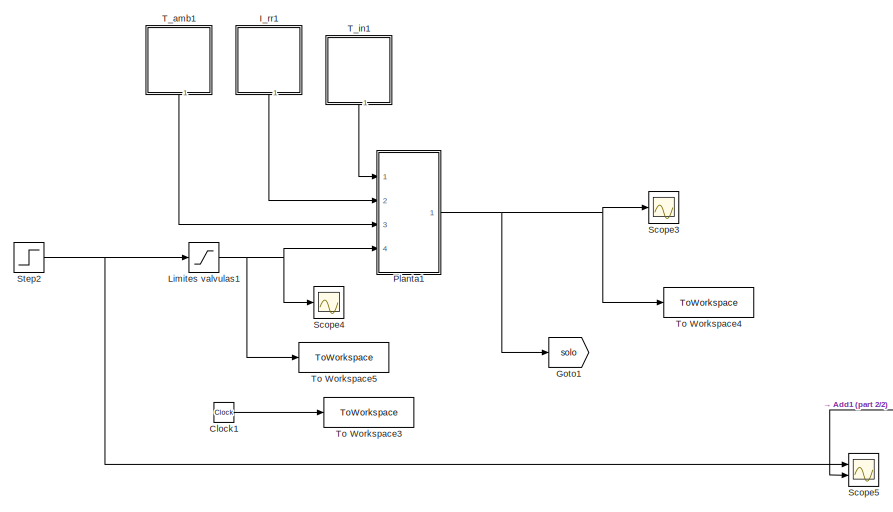
[diagram: root canvas - part 1/2, top left region]
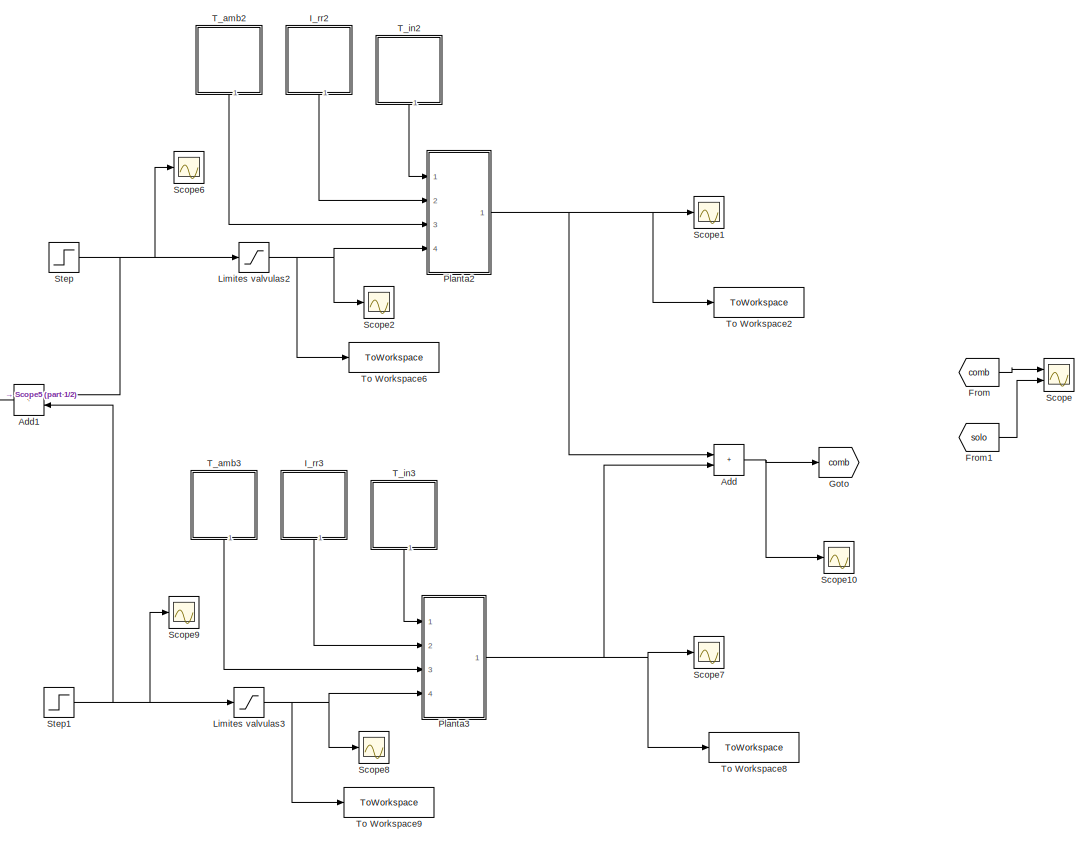
[diagram: root canvas - part 2/2, right side, full height]
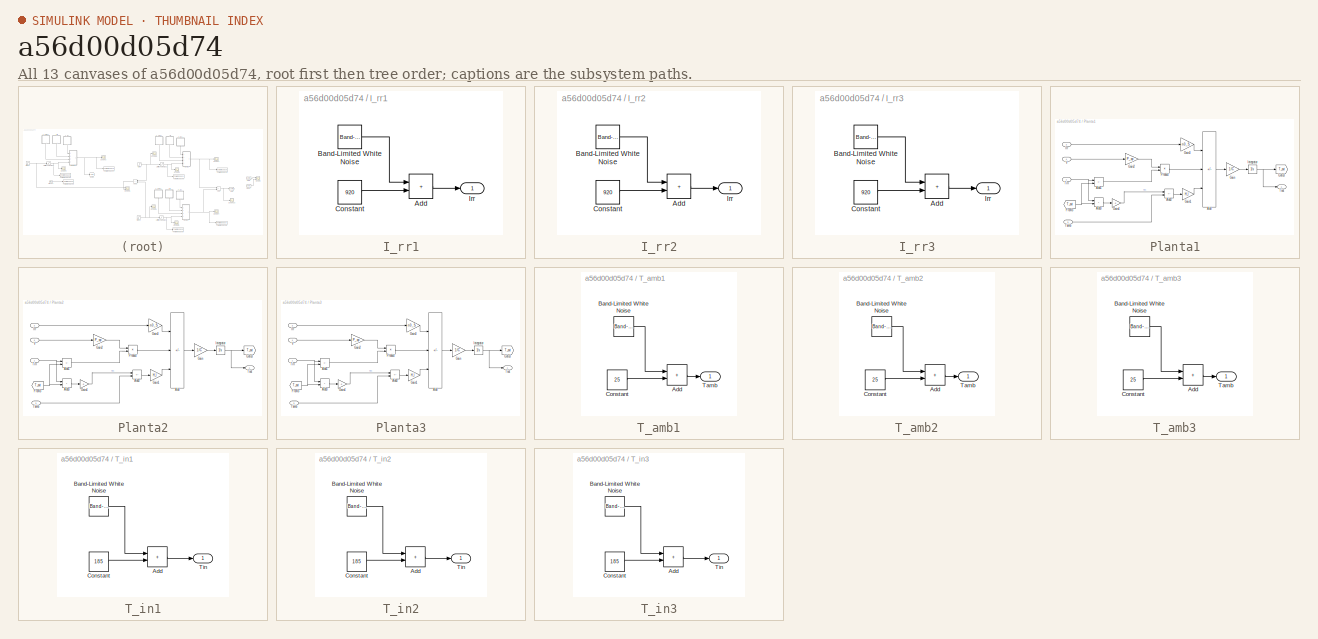
[diagram: thumbnail index - all 13 canvases of the model, root first then tree order]
MODEL slx_a56d00d05d74
KIND model
CONFIG AbsTol = auto
CONFIG EnableMultiTasking = off
CONFIG FixedStep = auto
CONFIG MaxStep = auto
CONFIG MinStep = auto
CONFIG RelTol = 1e-3
CONFIG SampleTimeConstraint = Unconstrained
CONFIG Solver = VariableStepAuto
CONFIG SolverName = VariableStepAuto
CONFIG StartTime = 0.0
CONFIG StopTime = 25
BLOCK [Sum] Add
  IconShape = rectangular
  Ports = [2, 1]
BLOCK [Sum] Add1
  IconShape = rectangular
  Ports = [2, 1]
BLOCK [Clock] Clock1
BLOCK [From] From
  GotoTag = comb
BLOCK [From] From1
  GotoTag = solo
BLOCK [Goto] Goto
  GotoTag = comb
BLOCK [Goto] Goto1
  GotoTag = solo
BLOCK [SubSystem] I_rr1
  Ports = [0, 1]
BLOCK [Sum] I_rr1/Add
  IconShape = rectangular
  Ports = [2, 1]
BLOCK [Reference] I_rr1/Band-Limited White Noise  REF=simulink/Sources/Band-Limited
White Noise
  Ports = [0, 1]
  SourceBlock = simulink/Sources/Band-Limited\nWhite Noise
  SourceType = Band-Limited White Noise.
BLOCK [Constant] I_rr1/Constant
  Value = 920
BLOCK [Outport] I_rr1/Irr
BLOCK [SubSystem] I_rr2
  Ports = [0, 1]
BLOCK [Sum] I_rr2/Add
  IconShape = rectangular
  Ports = [2, 1]
BLOCK [Reference] I_rr2/Band-Limited White Noise  REF=simulink/Sources/Band-Limited
White Noise
  Ports = [0, 1]
  SourceBlock = simulink/Sources/Band-Limited\nWhite Noise
  SourceType = Band-Limited White Noise.
BLOCK [Constant] I_rr2/Constant
  Value = 920
BLOCK [Outport] I_rr2/Irr
BLOCK [SubSystem] I_rr3
  Ports = [0, 1]
BLOCK [Sum] I_rr3/Add
  IconShape = rectangular
  Ports = [2, 1]
BLOCK [Reference] I_rr3/Band-Limited White Noise  REF=simulink/Sources/Band-Limited
White Noise
  Ports = [0, 1]
  SourceBlock = simulink/Sources/Band-Limited\nWhite Noise
  SourceType = Band-Limited White Noise.
BLOCK [Constant] I_rr3/Constant
  Value = 920
BLOCK [Outport] I_rr3/Irr
BLOCK [Saturate] Limites valvulas1
  LowerLimit = 2
  UpperLimit = 12
BLOCK [Saturate] Limites valvulas2
  LowerLimit = 2
  UpperLimit = 12
BLOCK [Saturate] Limites valvulas3
  LowerLimit = 2
  UpperLimit = 12
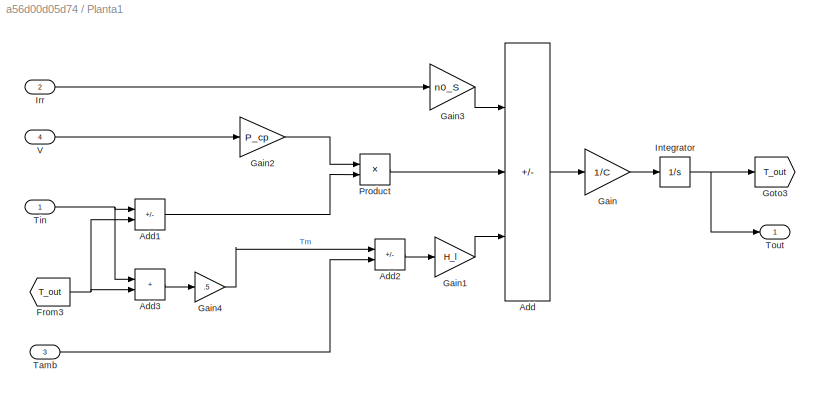
BLOCK [SubSystem] Planta1
  Ports = [4, 1]
BLOCK [Sum] Planta1/Add
  IconShape = rectangular
  Inputs = +--
  Ports = [3, 1]
BLOCK [Sum] Planta1/Add1
  IconShape = rectangular
  Inputs = -+
  Ports = [2, 1]
BLOCK [Sum] Planta1/Add2
  IconShape = rectangular
  Inputs = +-
  Ports = [2, 1]
BLOCK [Sum] Planta1/Add3
  IconShape = rectangular
  Ports = [2, 1]
BLOCK [From] Planta1/From3
  GotoTag = T_out
BLOCK [Gain] Planta1/Gain
  Gain = 1/C
BLOCK [Gain] Planta1/Gain1
  Gain = H_l
BLOCK [Gain] Planta1/Gain2
  Gain = P_cp
BLOCK [Gain] Planta1/Gain3
  Gain = n0_S
BLOCK [Gain] Planta1/Gain4
  Gain = .5
BLOCK [Goto] Planta1/Goto3
  GotoTag = T_out
BLOCK [Integrator] Planta1/Integrator
  Ports = [1, 1]
BLOCK [Inport] Planta1/Irr
  Port = 2
BLOCK [Product] Planta1/Product
  Ports = [2, 1]
BLOCK [Inport] Planta1/Tamb
  Port = 3
BLOCK [Inport] Planta1/Tin
BLOCK [Outport] Planta1/Tout
BLOCK [Inport] Planta1/V
  Port = 4
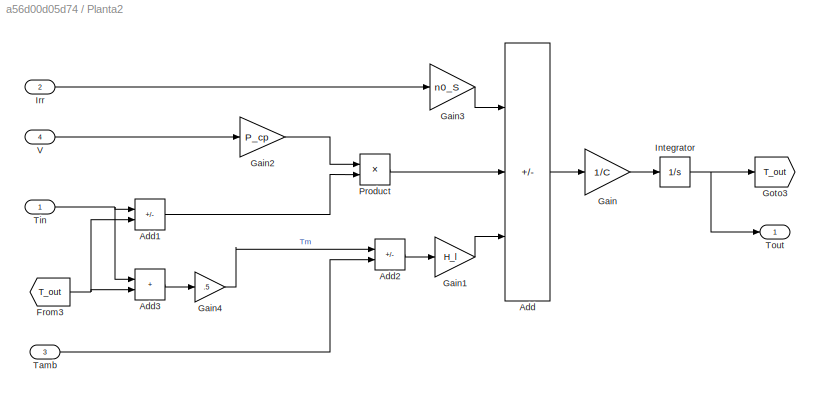
BLOCK [SubSystem] Planta2
  Ports = [4, 1]
BLOCK [Sum] Planta2/Add
  IconShape = rectangular
  Inputs = +--
  Ports = [3, 1]
BLOCK [Sum] Planta2/Add1
  IconShape = rectangular
  Inputs = -+
  Ports = [2, 1]
BLOCK [Sum] Planta2/Add2
  IconShape = rectangular
  Inputs = +-
  Ports = [2, 1]
BLOCK [Sum] Planta2/Add3
  IconShape = rectangular
  Ports = [2, 1]
BLOCK [From] Planta2/From3
  GotoTag = T_out
BLOCK [Gain] Planta2/Gain
  Gain = 1/C
BLOCK [Gain] Planta2/Gain1
  Gain = H_l
BLOCK [Gain] Planta2/Gain2
  Gain = P_cp
BLOCK [Gain] Planta2/Gain3
  Gain = n0_S
BLOCK [Gain] Planta2/Gain4
  Gain = .5
BLOCK [Goto] Planta2/Goto3
  GotoTag = T_out
BLOCK [Integrator] Planta2/Integrator
  Ports = [1, 1]
BLOCK [Inport] Planta2/Irr
  Port = 2
BLOCK [Product] Planta2/Product
  Ports = [2, 1]
BLOCK [Inport] Planta2/Tamb
  Port = 3
BLOCK [Inport] Planta2/Tin
BLOCK [Outport] Planta2/Tout
BLOCK [Inport] Planta2/V
  Port = 4
BLOCK [SubSystem] Planta3
  Ports = [4, 1]
BLOCK [Sum] Planta3/Add
  IconShape = rectangular
  Inputs = +--
  Ports = [3, 1]
BLOCK [Sum] Planta3/Add1
  IconShape = rectangular
  Inputs = -+
  Ports = [2, 1]
BLOCK [Sum] Planta3/Add2
  IconShape = rectangular
  Inputs = +-
  Ports = [2, 1]
BLOCK [Sum] Planta3/Add3
  IconShape = rectangular
  Ports = [2, 1]
BLOCK [From] Planta3/From3
  GotoTag = T_out
BLOCK [Gain] Planta3/Gain
  Gain = 1/C
BLOCK [Gain] Planta3/Gain1
  Gain = H_l
BLOCK [Gain] Planta3/Gain2
  Gain = P_cp
BLOCK [Gain] Planta3/Gain3
  Gain = n0_S
BLOCK [Gain] Planta3/Gain4
  Gain = .5
BLOCK [Goto] Planta3/Goto3
  GotoTag = T_out
BLOCK [Integrator] Planta3/Integrator
  Ports = [1, 1]
BLOCK [Inport] Planta3/Irr
  Port = 2
BLOCK [Product] Planta3/Product
  Ports = [2, 1]
BLOCK [Inport] Planta3/Tamb
  Port = 3
BLOCK [Inport] Planta3/Tin
BLOCK [Outport] Planta3/Tout
BLOCK [Inport] Planta3/V
  Port = 4
BLOCK [Scope] Scope
  Floating = off
  NumInputPorts = 2
  Ports = [2]
  ScopeSpecificationString = Simulink.scopes.TimeScopeBlockCfg('CurrentConfiguration', extmgr.ConfigurationSet(extmgr.Configuration('Core','General UI',true),extmgr.Configuration('Core','Source UI',true),extmgr.Configuration('Sources','WiredSimulink',true,'DataLoggingVariableName','ScopeData9'),extmgr.Configuration('Visuals','Time Domain',true,'SerializedDisplays',{struct('MinYLimReal','-125.2231','MaxYLimReal','1127.00787','...<+1388ch>
BLOCK [Scope] Scope1
  Floating = off
  NumInputPorts = 1
  Ports = [1]
  ScopeSpecificationString = Simulink.scopes.TimeScopeBlockCfg('CurrentConfiguration', extmgr.ConfigurationSet(extmgr.Configuration('Core','General UI',true),extmgr.Configuration('Core','Source UI',true),extmgr.Configuration('Sources','WiredSimulink',true),extmgr.Configuration('Visuals','Time Domain',true,'SerializedDisplays',{struct('MinYLimReal','204.72858','MaxYLimReal','533.85896','YLabelReal','','MinYLimMag','204.72858',...<+1385ch>
BLOCK [Scope] Scope10
  Floating = off
  NumInputPorts = 1
  Ports = [1]
  ScopeSpecificationString = Simulink.scopes.TimeScopeBlockCfg('CurrentConfiguration', extmgr.ConfigurationSet(extmgr.Configuration('Core','General UI',true),extmgr.Configuration('Core','Source UI',true),extmgr.Configuration('Sources','WiredSimulink',true,'DataLoggingVariableName','ScopeData10'),extmgr.Configuration('Visuals','Time Domain',true),extmgr.Configuration('Tools','Plot Navigation',true),extmgr.Configuration('Tools'...<+41ch>
BLOCK [Scope] Scope2
  Floating = off
  NumInputPorts = 1
  Ports = [1]
  ScopeSpecificationString = Simulink.scopes.TimeScopeBlockCfg('CurrentConfiguration', extmgr.ConfigurationSet(extmgr.Configuration('Core','General UI',true),extmgr.Configuration('Core','Source UI',true),extmgr.Configuration('Sources','WiredSimulink',true,'DataLoggingVariableName','ScopeData4'),extmgr.Configuration('Visuals','Time Domain',true,'SerializedDisplays',{struct('MinYLimReal','6.82922','MaxYLimReal','8.15653','YLabe...<+1417ch>
BLOCK [Scope] Scope3
  Floating = off
  NumInputPorts = 1
  Ports = [1]
  ScopeSpecificationString = Simulink.scopes.TimeScopeBlockCfg('CurrentConfiguration', extmgr.ConfigurationSet(extmgr.Configuration('Core','General UI',true),extmgr.Configuration('Core','Source UI',true),extmgr.Configuration('Sources','WiredSimulink',true,'DataLoggingVariableName','ScopeData1'),extmgr.Configuration('Visuals','Time Domain',true,'SerializedDisplays',{struct('MinYLimReal','224.46959','MaxYLimReal','356.18986','Y...<+1424ch>
BLOCK [Scope] Scope4
  Floating = off
  NumInputPorts = 1
  Ports = [1]
  ScopeSpecificationString = Simulink.scopes.TimeScopeBlockCfg('CurrentConfiguration', extmgr.ConfigurationSet(extmgr.Configuration('Core','General UI',true),extmgr.Configuration('Core','Source UI',true),extmgr.Configuration('Sources','WiredSimulink',true,'DataLoggingVariableName','ScopeData2'),extmgr.Configuration('Visuals','Time Domain',true,'SerializedDisplays',{struct('MinYLimReal','6.82922','MaxYLimReal','8.15653','YLabe...<+1417ch>
BLOCK [Scope] Scope5
  Floating = off
  NumInputPorts = 2
  Ports = [2]
  ScopeSpecificationString = Simulink.scopes.TimeScopeBlockCfg('CurrentConfiguration', extmgr.ConfigurationSet(extmgr.Configuration('Core','General UI',true),extmgr.Configuration('Core','Source UI',true),extmgr.Configuration('Sources','WiredSimulink',true,'DataLoggingVariableName','ScopeData3'),extmgr.Configuration('Visuals','Time Domain',true,'SerializedDisplays',{struct('MinYLimReal','3.00000','MaxYLimReal','13.00000','YLab...<+1373ch>
BLOCK [Scope] Scope6
  Floating = off
  NumInputPorts = 1
  Ports = [1]
  ScopeSpecificationString = Simulink.scopes.TimeScopeBlockCfg('CurrentConfiguration', extmgr.ConfigurationSet(extmgr.Configuration('Core','General UI',true),extmgr.Configuration('Core','Source UI',true),extmgr.Configuration('Sources','WiredSimulink',true,'DataLoggingVariableName','ScopeData5'),extmgr.Configuration('Visuals','Time Domain',true,'SerializedDisplays',{struct('MinYLimReal','0.75','MaxYLimReal','13.25','YLabelReal...<+1345ch>
BLOCK [Scope] Scope7
  Floating = off
  NumInputPorts = 1
  Ports = [1]
  ScopeSpecificationString = Simulink.scopes.TimeScopeBlockCfg('CurrentConfiguration', extmgr.ConfigurationSet(extmgr.Configuration('Core','General UI',true),extmgr.Configuration('Core','Source UI',true),extmgr.Configuration('Sources','WiredSimulink',true,'DataLoggingVariableName','ScopeData6'),extmgr.Configuration('Visuals','Time Domain',true,'SerializedDisplays',{struct('MinYLimReal','204.72986','MaxYLimReal','533.91992','Y...<+1424ch>
BLOCK [Scope] Scope8
  Floating = off
  NumInputPorts = 1
  Ports = [1]
  ScopeSpecificationString = Simulink.scopes.TimeScopeBlockCfg('CurrentConfiguration', extmgr.ConfigurationSet(extmgr.Configuration('Core','General UI',true),extmgr.Configuration('Core','Source UI',true),extmgr.Configuration('Sources','WiredSimulink',true,'DataLoggingVariableName','ScopeData7'),extmgr.Configuration('Visuals','Time Domain',true,'SerializedDisplays',{struct('MinYLimReal','6.82922','MaxYLimReal','8.15653','YLabe...<+1417ch>
BLOCK [Scope] Scope9
  Floating = off
  NumInputPorts = 1
  Ports = [1]
  ScopeSpecificationString = Simulink.scopes.TimeScopeBlockCfg('CurrentConfiguration', extmgr.ConfigurationSet(extmgr.Configuration('Core','General UI',true),extmgr.Configuration('Core','Source UI',true),extmgr.Configuration('Sources','WiredSimulink',true,'DataLoggingVariableName','ScopeData8'),extmgr.Configuration('Visuals','Time Domain',true,'SerializedDisplays',{struct('MinYLimReal','0.75','MaxYLimReal','13.25','YLabelReal...<+1345ch>
BLOCK [Step] Step
  After = 5
  Before = 2
  SampleTime = 0
  Time = 5
BLOCK [Step] Step1
  After = 7
  Before = 2
  SampleTime = 0
  Time = 5
BLOCK [Step] Step2
  After = 12
  Before = 4
  SampleTime = 0
  Time = 5
BLOCK [SubSystem] T_amb1
  Ports = [0, 1]
BLOCK [Sum] T_amb1/Add
  IconShape = rectangular
  Ports = [2, 1]
BLOCK [Reference] T_amb1/Band-Limited White Noise  REF=simulink/Sources/Band-Limited
White Noise
  Ports = [0, 1]
  SourceBlock = simulink/Sources/Band-Limited\nWhite Noise
  SourceType = Band-Limited White Noise.
BLOCK [Constant] T_amb1/Constant
  Value = 25
BLOCK [Outport] T_amb1/Tamb
BLOCK [SubSystem] T_amb2
  Ports = [0, 1]
BLOCK [Sum] T_amb2/Add
  IconShape = rectangular
  Ports = [2, 1]
BLOCK [Reference] T_amb2/Band-Limited White Noise  REF=simulink/Sources/Band-Limited
White Noise
  Ports = [0, 1]
  SourceBlock = simulink/Sources/Band-Limited\nWhite Noise
  SourceType = Band-Limited White Noise.
BLOCK [Constant] T_amb2/Constant
  Value = 25
BLOCK [Outport] T_amb2/Tamb
BLOCK [SubSystem] T_amb3
  Ports = [0, 1]
BLOCK [Sum] T_amb3/Add
  IconShape = rectangular
  Ports = [2, 1]
BLOCK [Reference] T_amb3/Band-Limited White Noise  REF=simulink/Sources/Band-Limited
White Noise
  Ports = [0, 1]
  SourceBlock = simulink/Sources/Band-Limited\nWhite Noise
  SourceType = Band-Limited White Noise.
BLOCK [Constant] T_amb3/Constant
  Value = 25
BLOCK [Outport] T_amb3/Tamb
BLOCK [SubSystem] T_in1
  Ports = [0, 1]
BLOCK [Sum] T_in1/Add
  IconShape = rectangular
  Ports = [2, 1]
BLOCK [Reference] T_in1/Band-Limited White Noise  REF=simulink/Sources/Band-Limited
White Noise
  Ports = [0, 1]
  SourceBlock = simulink/Sources/Band-Limited\nWhite Noise
  SourceType = Band-Limited White Noise.
BLOCK [Constant] T_in1/Constant
  Value = 185
BLOCK [Outport] T_in1/Tin
BLOCK [SubSystem] T_in2
  Ports = [0, 1]
BLOCK [Sum] T_in2/Add
  IconShape = rectangular
  Ports = [2, 1]
BLOCK [Reference] T_in2/Band-Limited White Noise  REF=simulink/Sources/Band-Limited
White Noise
  Ports = [0, 1]
  SourceBlock = simulink/Sources/Band-Limited\nWhite Noise
  SourceType = Band-Limited White Noise.
BLOCK [Constant] T_in2/Constant
  Value = 185
BLOCK [Outport] T_in2/Tin
BLOCK [SubSystem] T_in3
  Ports = [0, 1]
BLOCK [Sum] T_in3/Add
  IconShape = rectangular
  Ports = [2, 1]
BLOCK [Reference] T_in3/Band-Limited White Noise  REF=simulink/Sources/Band-Limited
White Noise
  Ports = [0, 1]
  SourceBlock = simulink/Sources/Band-Limited\nWhite Noise
  SourceType = Band-Limited White Noise.
BLOCK [Constant] T_in3/Constant
  Value = 185
BLOCK [Outport] T_in3/Tin
BLOCK [ToWorkspace] To Workspace2
  FixptAsFi = on
  MaxDataPoints = inf
  Ports = [1]
  SampleTime = -1
  SaveFormat = Timeseries
  VariableName = outV
BLOCK [ToWorkspace] To Workspace3
  FixptAsFi = on
  MaxDataPoints = inf
  Ports = [1]
  SampleTime = -1
  VariableName = time1
BLOCK [ToWorkspace] To Workspace4
  FixptAsFi = on
  MaxDataPoints = inf
  Ports = [1]
  SampleTime = -1
  SaveFormat = Timeseries
  VariableName = outV1
BLOCK [ToWorkspace] To Workspace5
  FixptAsFi = on
  MaxDataPoints = inf
  Ports = [1]
  SampleTime = -1
  SaveFormat = Timeseries
  VariableName = inV1
BLOCK [ToWorkspace] To Workspace6
  FixptAsFi = on
  MaxDataPoints = inf
  Ports = [1]
  SampleTime = -1
  SaveFormat = Timeseries
  VariableName = inV
BLOCK [ToWorkspace] To Workspace8
  FixptAsFi = on
  MaxDataPoints = inf
  Ports = [1]
  SampleTime = -1
  SaveFormat = Timeseries
  VariableName = outV2
BLOCK [ToWorkspace] To Workspace9
  FixptAsFi = on
  MaxDataPoints = inf
  Ports = [1]
  SampleTime = -1
  SaveFormat = Timeseries
  VariableName = inV2
LINE Add1:1 -> Scope5:2
NET Add:1 -> Goto:1, Scope10:1
LINE Clock1:1 -> To Workspace3:1
LINE From1:1 -> Scope:2
LINE From:1 -> Scope:1
LINE I_rr1/Add:1 -> I_rr1/Irr:1
LINE I_rr1/Band-Limited White Noise:1 -> I_rr1/Add:1
LINE I_rr1/Constant:1 -> I_rr1/Add:2
LINE I_rr1:1 -> Planta1:2
LINE I_rr2/Add:1 -> I_rr2/Irr:1
LINE I_rr2/Band-Limited White Noise:1 -> I_rr2/Add:1
LINE I_rr2/Constant:1 -> I_rr2/Add:2
LINE I_rr2:1 -> Planta2:2
LINE I_rr3/Add:1 -> I_rr3/Irr:1
LINE I_rr3/Band-Limited White Noise:1 -> I_rr3/Add:1
LINE I_rr3/Constant:1 -> I_rr3/Add:2
LINE I_rr3:1 -> Planta3:2
NET Limites valvulas1:1 -> Planta1:4, Scope4:1, To Workspace5:1
NET Limites valvulas2:1 -> Planta2:4, Scope2:1, To Workspace6:1
NET Limites valvulas3:1 -> Planta3:4, Scope8:1, To Workspace9:1
LINE Planta1/Add1:1 -> Planta1/Product:2
LINE Planta1/Add2:1 -> Planta1/Gain1:1
LINE Planta1/Add3:1 -> Planta1/Gain4:1
LINE Planta1/Add:1 -> Planta1/Gain:1
NET Planta1/From3:1 -> Planta1/Add1:2, Planta1/Add3:2
LINE Planta1/Gain1:1 -> Planta1/Add:3
LINE Planta1/Gain2:1 -> Planta1/Product:1
LINE Planta1/Gain3:1 -> Planta1/Add:1
LINE Planta1/Gain4:1 -> Planta1/Add2:1
LINE Planta1/Gain:1 -> Planta1/Integrator:1
NET Planta1/Integrator:1 -> Planta1/Goto3:1, Planta1/Tout:1
LINE Planta1/Irr:1 -> Planta1/Gain3:1
LINE Planta1/Product:1 -> Planta1/Add:2
LINE Planta1/Tamb:1 -> Planta1/Add2:2
NET Planta1/Tin:1 -> Planta1/Add1:1, Planta1/Add3:1
LINE Planta1/V:1 -> Planta1/Gain2:1
NET Planta1:1 -> Goto1:1, Scope3:1, To Workspace4:1
LINE Planta2/Add1:1 -> Planta2/Product:2
LINE Planta2/Add2:1 -> Planta2/Gain1:1
LINE Planta2/Add3:1 -> Planta2/Gain4:1
LINE Planta2/Add:1 -> Planta2/Gain:1
NET Planta2/From3:1 -> Planta2/Add1:2, Planta2/Add3:2
LINE Planta2/Gain1:1 -> Planta2/Add:3
LINE Planta2/Gain2:1 -> Planta2/Product:1
LINE Planta2/Gain3:1 -> Planta2/Add:1
LINE Planta2/Gain4:1 -> Planta2/Add2:1
LINE Planta2/Gain:1 -> Planta2/Integrator:1
NET Planta2/Integrator:1 -> Planta2/Goto3:1, Planta2/Tout:1
LINE Planta2/Irr:1 -> Planta2/Gain3:1
LINE Planta2/Product:1 -> Planta2/Add:2
LINE Planta2/Tamb:1 -> Planta2/Add2:2
NET Planta2/Tin:1 -> Planta2/Add1:1, Planta2/Add3:1
LINE Planta2/V:1 -> Planta2/Gain2:1
NET Planta2:1 -> Add:1, Scope1:1, To Workspace2:1
LINE Planta3/Add1:1 -> Planta3/Product:2
LINE Planta3/Add2:1 -> Planta3/Gain1:1
LINE Planta3/Add3:1 -> Planta3/Gain4:1
LINE Planta3/Add:1 -> Planta3/Gain:1
NET Planta3/From3:1 -> Planta3/Add1:2, Planta3/Add3:2
LINE Planta3/Gain1:1 -> Planta3/Add:3
LINE Planta3/Gain2:1 -> Planta3/Product:1
LINE Planta3/Gain3:1 -> Planta3/Add:1
LINE Planta3/Gain4:1 -> Planta3/Add2:1
LINE Planta3/Gain:1 -> Planta3/Integrator:1
NET Planta3/Integrator:1 -> Planta3/Goto3:1, Planta3/Tout:1
LINE Planta3/Irr:1 -> Planta3/Gain3:1
LINE Planta3/Product:1 -> Planta3/Add:2
LINE Planta3/Tamb:1 -> Planta3/Add2:2
NET Planta3/Tin:1 -> Planta3/Add1:1, Planta3/Add3:1
LINE Planta3/V:1 -> Planta3/Gain2:1
NET Planta3:1 -> Add:2, Scope7:1, To Workspace8:1
NET Step1:1 -> Add1:2, Limites valvulas3:1, Scope9:1
NET Step2:1 -> Limites valvulas1:1, Scope5:1
NET Step:1 -> Add1:1, Limites valvulas2:1, Scope6:1
LINE T_amb1/Add:1 -> T_amb1/Tamb:1
LINE T_amb1/Band-Limited White Noise:1 -> T_amb1/Add:1
LINE T_amb1/Constant:1 -> T_amb1/Add:2
LINE T_amb1:1 -> Planta1:3
LINE T_amb2/Add:1 -> T_amb2/Tamb:1
LINE T_amb2/Band-Limited White Noise:1 -> T_amb2/Add:1
LINE T_amb2/Constant:1 -> T_amb2/Add:2
LINE T_amb2:1 -> Planta2:3
LINE T_amb3/Add:1 -> T_amb3/Tamb:1
LINE T_amb3/Band-Limited White Noise:1 -> T_amb3/Add:1
LINE T_amb3/Constant:1 -> T_amb3/Add:2
LINE T_amb3:1 -> Planta3:3
LINE T_in1/Add:1 -> T_in1/Tin:1
LINE T_in1/Band-Limited White Noise:1 -> T_in1/Add:1
LINE T_in1/Constant:1 -> T_in1/Add:2
LINE T_in1:1 -> Planta1:1
LINE T_in2/Add:1 -> T_in2/Tin:1
LINE T_in2/Band-Limited White Noise:1 -> T_in2/Add:1
LINE T_in2/Constant:1 -> T_in2/Add:2
LINE T_in2:1 -> Planta2:1
LINE T_in3/Add:1 -> T_in3/Tin:1
LINE T_in3/Band-Limited White Noise:1 -> T_in3/Add:1
LINE T_in3/Constant:1 -> T_in3/Add:2
LINE T_in3:1 -> Planta3:1
note: NET lines group one-source signal fan-out (src -> all destinations, sorted); 1:1 wires keep LINE
